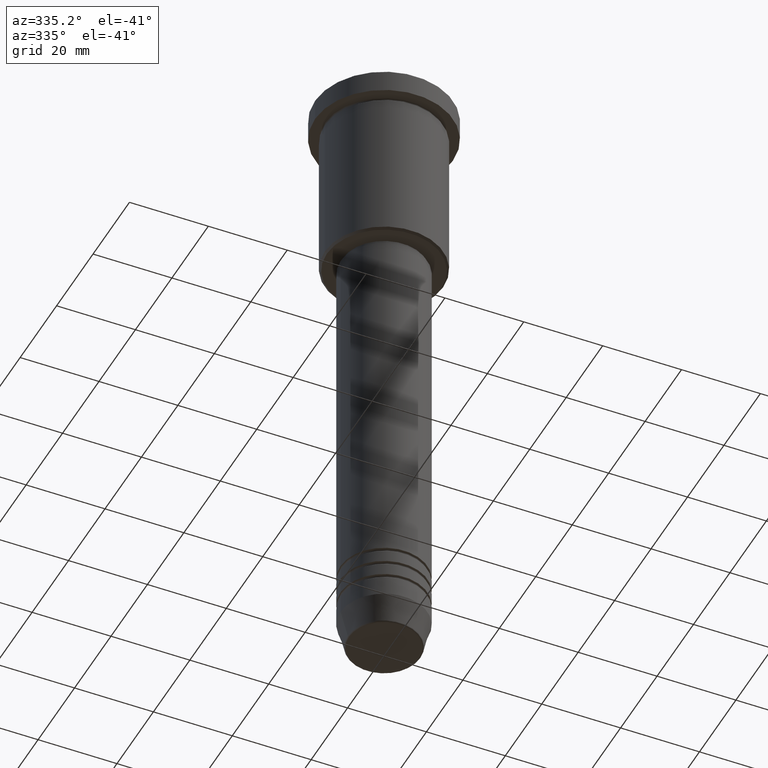
[diagram: clean part render]
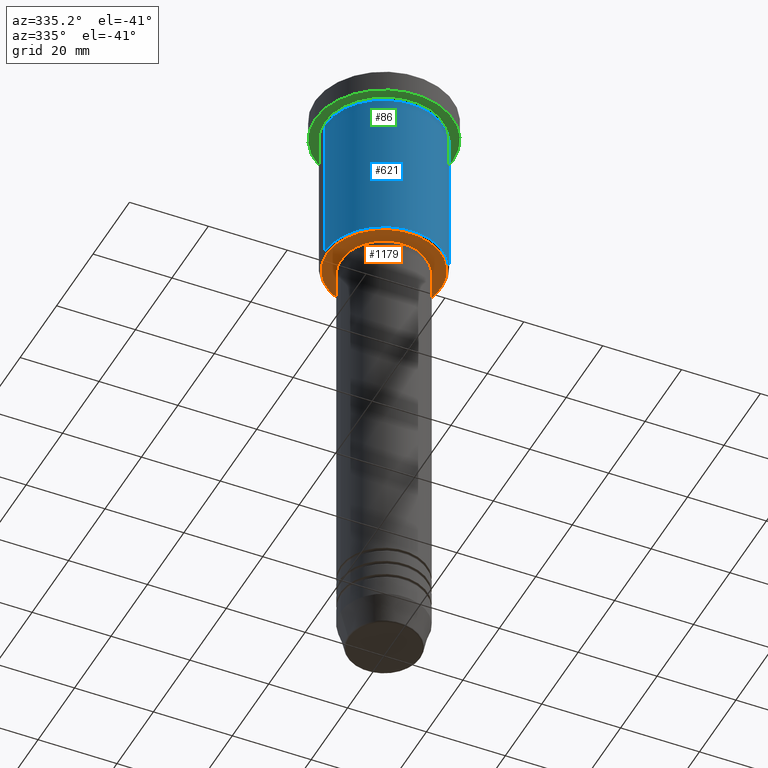
[diagram: same view with three faces highlighted in distinct colors, each labeled with its STEP entity id]
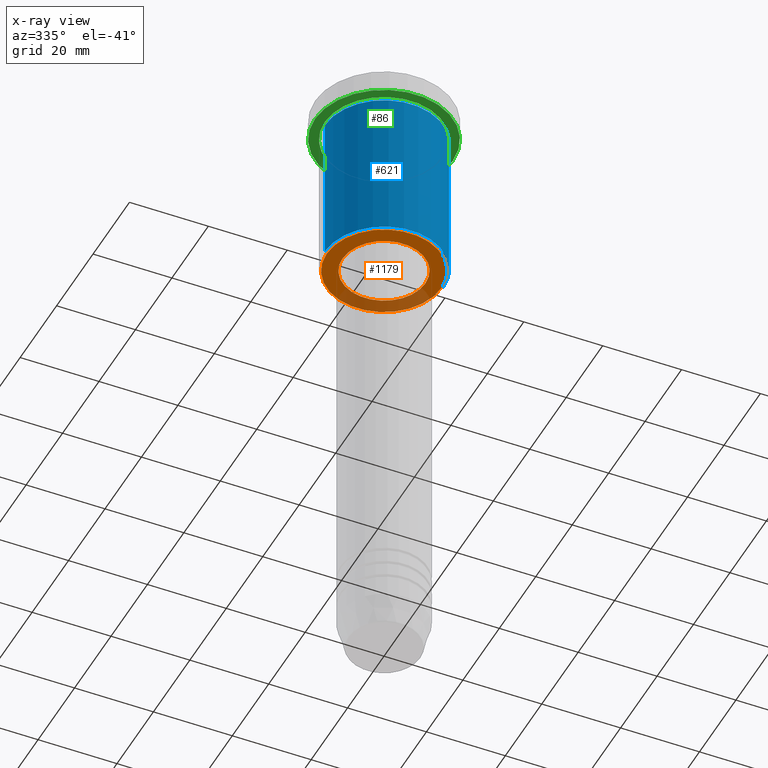
[diagram: x-ray of the same camera — body ghosted, the three highlighted faces saturated]
A machine part, auxiliary view with three faces highlighted in distinct colors.
The next image is the same camera in x-ray (body ghosted, the three faces saturated) — at least one of them is partly hidden behind the body in this view.
Their STEP definitions:

[orange] entity #1179 — the highlighted planar face has unit normal (0, 0, -1).
#3 = CARTESIAN_POINT ( 'NONE',  ( 0.000000000000000000, 0.000000000000000000, -46.00000000000000711 ) ) ;
#12 = CARTESIAN_POINT ( 'NONE',  ( 0.000000000000000000, 0.000000000000000000, -46.00000000000000711 ) ) ;
#28 = CARTESIAN_POINT ( 'NONE',  ( -10.49999999999999822, 1.285879139104720633E-15, -46.00000000000000711 ) ) ;
#33 = CIRCLE ( 'NONE', #842, 10.49999999999999822 ) ;
#64 = ORIENTED_EDGE ( 'NONE', *, *, #1136, .T. ) ;
#85 = VERTEX_POINT ( 'NONE', #28 ) ;
#110 = CIRCLE ( 'NONE', #560, 14.50000000000005329 ) ;
#136 = CARTESIAN_POINT ( 'NONE',  ( 0.000000000000000000, 0.000000000000000000, -46.00000000000001421 ) ) ;
#139 = ORIENTED_EDGE ( 'NONE', *, *, #231, .T. ) ;
#147 = CARTESIAN_POINT ( 'NONE',  ( 0.000000000000000000, 15.00000000000000000, -46.00000000000001421 ) ) ;
#161 = FACE_OUTER_BOUND ( 'NONE', #205, .T. ) ;
#195 = DIRECTION ( 'NONE',  ( 0.000000000000000000, 0.000000000000000000, -1.000000000000000000 ) ) ;
#205 = EDGE_LOOP ( 'NONE', ( #139, #64 ) ) ;
#231 = EDGE_CURVE ( 'NONE', #686, #650, #1063, .T. ) ;
#233 = CARTESIAN_POINT ( 'NONE',  ( -14.50000000000005329, 1.806354028742348957E-15, -46.00000000000001421 ) ) ;
#236 = DIRECTION ( 'NONE',  ( -1.000000000000000000, 0.000000000000000000, -0.000000000000000000 ) ) ;
#268 = ORIENTED_EDGE ( 'NONE', *, *, #664, .T. ) ;
#277 = CIRCLE ( 'NONE', #1131, 10.49999999999999822 ) ;
#312 = DIRECTION ( 'NONE',  ( -1.000000000000000000, 0.000000000000000000, 0.000000000000000000 ) ) ;
#329 = FACE_BOUND ( 'NONE', #1059, .T. ) ;
#376 = DIRECTION ( 'NONE',  ( 1.000000000000000000, 0.000000000000000000, 0.000000000000000000 ) ) ;
#549 = DIRECTION ( 'NONE',  ( -1.000000000000000000, 0.000000000000000000, 0.000000000000000000 ) ) ;
#560 = AXIS2_PLACEMENT_3D ( 'NONE', #136, #1125, #312 ) ;
#594 = AXIS2_PLACEMENT_3D ( 'NONE', #147, #1057, #236 ) ;
#619 = DIRECTION ( 'NONE',  ( -0.000000000000000000, -0.000000000000000000, 1.000000000000000000 ) ) ;
#638 = DIRECTION ( 'NONE',  ( -0.000000000000000000, -0.000000000000000000, 1.000000000000000000 ) ) ;
#645 = DIRECTION ( 'NONE',  ( 1.000000000000000000, 0.000000000000000000, 0.000000000000000000 ) ) ;
#650 = VERTEX_POINT ( 'NONE', #233 ) ;
#663 = VERTEX_POINT ( 'NONE', #741 ) ;
#664 = EDGE_CURVE ( 'NONE', #663, #85, #33, .T. ) ;
#679 = ORIENTED_EDGE ( 'NONE', *, *, #760, .T. ) ;
#686 = VERTEX_POINT ( 'NONE', #1088 ) ;
#687 = PLANE ( 'NONE',  #594 ) ;
#719 = CARTESIAN_POINT ( 'NONE',  ( 0.000000000000000000, 0.000000000000000000, -46.00000000000001421 ) ) ;
#741 = CARTESIAN_POINT ( 'NONE',  ( 10.49999999999999822, 0.000000000000000000, -46.00000000000000711 ) ) ;
#760 = EDGE_CURVE ( 'NONE', #85, #663, #277, .T. ) ;
#842 = AXIS2_PLACEMENT_3D ( 'NONE', #12, #619, #645 ) ;
#943 = AXIS2_PLACEMENT_3D ( 'NONE', #719, #195, #549 ) ;
#1057 = DIRECTION ( 'NONE',  ( 0.000000000000000000, 0.000000000000000000, -1.000000000000000000 ) ) ;
#1059 = EDGE_LOOP ( 'NONE', ( #268, #679 ) ) ;
#1063 = CIRCLE ( 'NONE', #943, 14.50000000000005329 ) ;
#1088 = CARTESIAN_POINT ( 'NONE',  ( 14.50000000000005329, 0.000000000000000000, -46.00000000000001421 ) ) ;
#1125 = DIRECTION ( 'NONE',  ( 0.000000000000000000, 0.000000000000000000, -1.000000000000000000 ) ) ;
#1131 = AXIS2_PLACEMENT_3D ( 'NONE', #3, #638, #376 ) ;
#1136 = EDGE_CURVE ( 'NONE', #650, #686, #110, .T. ) ;
#1179 = ADVANCED_FACE ( 'NONE', ( #161, #329 ), #687, .T. ) ;

[blue] entity #621 — the highlighted cylindrical surface (partial cylindrical patch) has radius 15 mm, axis along (-0, -0, 1).
#13 = AXIS2_PLACEMENT_3D ( 'NONE', #1032, #751, #214 ) ;
#24 = CARTESIAN_POINT ( 'NONE',  ( -15.00000000000000000, 1.836970198721029589E-15, -6.999999999999995559 ) ) ;
#77 = DIRECTION ( 'NONE',  ( 1.000000000000000000, 0.000000000000000000, 0.000000000000000000 ) ) ;
#117 = DIRECTION ( 'NONE',  ( 1.000000000000000000, 0.000000000000000000, 0.000000000000000000 ) ) ;
#180 = CARTESIAN_POINT ( 'NONE',  ( -15.00000000000000000, 1.836970198721029589E-15, 0.000000000000000000 ) ) ;
#203 = LINE ( 'NONE', #1128, #894 ) ;
#214 = DIRECTION ( 'NONE',  ( -1.000000000000000000, 0.000000000000000000, 0.000000000000000000 ) ) ;
#248 = VERTEX_POINT ( 'NONE', #903 ) ;
#303 = CARTESIAN_POINT ( 'NONE',  ( 0.000000000000000000, 0.000000000000000000, 0.000000000000000000 ) ) ;
#321 = VERTEX_POINT ( 'NONE', #24 ) ;
#331 = EDGE_CURVE ( 'NONE', #350, #404, #203, .T. ) ;
#350 = VERTEX_POINT ( 'NONE', #392 ) ;
#380 = AXIS2_PLACEMENT_3D ( 'NONE', #303, #461, #117 ) ;
#392 = CARTESIAN_POINT ( 'NONE',  ( 15.00000000000000000, 0.000000000000000000, -45.50000000000005684 ) ) ;
#404 = VERTEX_POINT ( 'NONE', #962 ) ;
#425 = ORIENTED_EDGE ( 'NONE', *, *, #901, .F. ) ;
#461 = DIRECTION ( 'NONE',  ( -0.000000000000000000, -0.000000000000000000, 1.000000000000000000 ) ) ;
#472 = ORIENTED_EDGE ( 'NONE', *, *, #331, .T. ) ;
#486 = AXIS2_PLACEMENT_3D ( 'NONE', #1175, #803, #77 ) ;
#603 = EDGE_CURVE ( 'NONE', #248, #350, #875, .T. ) ;
#613 = ORIENTED_EDGE ( 'NONE', *, *, #958, .F. ) ;
#621 = ADVANCED_FACE ( 'NONE', ( #1026 ), #936, .T. ) ;
#628 = LINE ( 'NONE', #180, #1065 ) ;
#681 = EDGE_LOOP ( 'NONE', ( #425, #1127, #472, #613 ) ) ;
#751 = DIRECTION ( 'NONE',  ( -0.000000000000000000, -0.000000000000000000, 1.000000000000000000 ) ) ;
#773 = DIRECTION ( 'NONE',  ( -0.000000000000000000, -0.000000000000000000, 1.000000000000000000 ) ) ;
#803 = DIRECTION ( 'NONE',  ( -0.000000000000000000, -0.000000000000000000, 1.000000000000000000 ) ) ;
#822 = DIRECTION ( 'NONE',  ( -0.000000000000000000, -0.000000000000000000, 1.000000000000000000 ) ) ;
#843 = CIRCLE ( 'NONE', #486, 15.00000000000000000 ) ;
#875 = CIRCLE ( 'NONE', #13, 15.00000000000000000 ) ;
#894 = VECTOR ( 'NONE', #773, 1000.000000000000000 ) ;
#901 = EDGE_CURVE ( 'NONE', #248, #321, #628, .T. ) ;
#903 = CARTESIAN_POINT ( 'NONE',  ( -15.00000000000000000, 1.836970198721029589E-15, -45.50000000000005684 ) ) ;
#936 = CYLINDRICAL_SURFACE ( 'NONE', #380, 15.00000000000000000 ) ;
#958 = EDGE_CURVE ( 'NONE', #321, #404, #843, .T. ) ;
#962 = CARTESIAN_POINT ( 'NONE',  ( 15.00000000000000000, 0.000000000000000000, -6.999999999999995559 ) ) ;
#1026 = FACE_OUTER_BOUND ( 'NONE', #681, .T. ) ;
#1032 = CARTESIAN_POINT ( 'NONE',  ( 0.000000000000000000, 0.000000000000000000, -45.50000000000005684 ) ) ;
#1065 = VECTOR ( 'NONE', #822, 1000.000000000000000 ) ;
#1127 = ORIENTED_EDGE ( 'NONE', *, *, #603, .T. ) ;
#1128 = CARTESIAN_POINT ( 'NONE',  ( 15.00000000000000000, 0.000000000000000000, 0.000000000000000000 ) ) ;
#1175 = CARTESIAN_POINT ( 'NONE',  ( 0.000000000000000000, 0.000000000000000000, -6.999999999999995559 ) ) ;

[green] entity #86 — the highlighted planar face has unit normal (0, 0, -1).
#45 = ORIENTED_EDGE ( 'NONE', *, *, #352, .T. ) ;
#47 = ORIENTED_EDGE ( 'NONE', *, *, #1096, .F. ) ;
#49 = AXIS2_PLACEMENT_3D ( 'NONE', #581, #291, #951 ) ;
#86 = ADVANCED_FACE ( 'NONE', ( #394, #212 ), #308, .T. ) ;
#119 = CARTESIAN_POINT ( 'NONE',  ( 0.000000000000000000, 0.000000000000000000, -5.999999999999995559 ) ) ;
#183 = CIRCLE ( 'NONE', #49, 17.50000000000000000 ) ;
#194 = ORIENTED_EDGE ( 'NONE', *, *, #786, .T. ) ;
#212 = FACE_OUTER_BOUND ( 'NONE', #1017, .T. ) ;
#291 = DIRECTION ( 'NONE',  ( -0.000000000000000000, -0.000000000000000000, 1.000000000000000000 ) ) ;
#308 = PLANE ( 'NONE',  #318 ) ;
#318 = AXIS2_PLACEMENT_3D ( 'NONE', #474, #744, #665 ) ;
#352 = EDGE_CURVE ( 'NONE', #770, #1176, #714, .T. ) ;
#361 = AXIS2_PLACEMENT_3D ( 'NONE', #676, #762, #938 ) ;
#385 = CARTESIAN_POINT ( 'NONE',  ( -17.50000000000000000, 2.143131898507868248E-15, -5.999999999999995559 ) ) ;
#394 = FACE_BOUND ( 'NONE', #978, .T. ) ;
#451 = CIRCLE ( 'NONE', #361, 15.00000000000000000 ) ;
#468 = AXIS2_PLACEMENT_3D ( 'NONE', #119, #1115, #767 ) ;
#474 = CARTESIAN_POINT ( 'NONE',  ( 0.000000000000000000, 17.50000000000000000, -5.999999999999995559 ) ) ;
#515 = CARTESIAN_POINT ( 'NONE',  ( -15.00000000000000000, 0.000000000000000000, -5.999999999999994671 ) ) ;
#524 = CIRCLE ( 'NONE', #983, 17.50000000000000000 ) ;
#581 = CARTESIAN_POINT ( 'NONE',  ( 0.000000000000000000, 0.000000000000000000, -5.999999999999995559 ) ) ;
#665 = DIRECTION ( 'NONE',  ( -1.000000000000000000, 0.000000000000000000, -0.000000000000000000 ) ) ;
#676 = CARTESIAN_POINT ( 'NONE',  ( 0.000000000000000000, 0.000000000000000000, -5.999999999999995559 ) ) ;
#714 = CIRCLE ( 'NONE', #468, 15.00000000000000000 ) ;
#733 = CARTESIAN_POINT ( 'NONE',  ( 0.000000000000000000, 0.000000000000000000, -5.999999999999995559 ) ) ;
#744 = DIRECTION ( 'NONE',  ( 0.000000000000000000, 0.000000000000000000, -1.000000000000000000 ) ) ;
#762 = DIRECTION ( 'NONE',  ( -0.000000000000000000, -0.000000000000000000, 1.000000000000000000 ) ) ;
#763 = VERTEX_POINT ( 'NONE', #1009 ) ;
#767 = DIRECTION ( 'NONE',  ( -1.000000000000000000, 0.000000000000000000, 0.000000000000000000 ) ) ;
#770 = VERTEX_POINT ( 'NONE', #925 ) ;
#786 = EDGE_CURVE ( 'NONE', #1176, #770, #451, .T. ) ;
#831 = DIRECTION ( 'NONE',  ( 1.000000000000000000, 0.000000000000000000, 0.000000000000000000 ) ) ;
#848 = EDGE_CURVE ( 'NONE', #763, #1119, #183, .T. ) ;
#865 = ORIENTED_EDGE ( 'NONE', *, *, #848, .F. ) ;
#920 = DIRECTION ( 'NONE',  ( -0.000000000000000000, -0.000000000000000000, 1.000000000000000000 ) ) ;
#925 = CARTESIAN_POINT ( 'NONE',  ( 15.00000000000000000, 1.836970198721029589E-15, -5.999999999999994671 ) ) ;
#938 = DIRECTION ( 'NONE',  ( -1.000000000000000000, 0.000000000000000000, 0.000000000000000000 ) ) ;
#951 = DIRECTION ( 'NONE',  ( 1.000000000000000000, 0.000000000000000000, 0.000000000000000000 ) ) ;
#978 = EDGE_LOOP ( 'NONE', ( #194, #45 ) ) ;
#983 = AXIS2_PLACEMENT_3D ( 'NONE', #733, #920, #831 ) ;
#1009 = CARTESIAN_POINT ( 'NONE',  ( 17.50000000000000000, 0.000000000000000000, -5.999999999999995559 ) ) ;
#1017 = EDGE_LOOP ( 'NONE', ( #865, #47 ) ) ;
#1096 = EDGE_CURVE ( 'NONE', #1119, #763, #524, .T. ) ;
#1115 = DIRECTION ( 'NONE',  ( -0.000000000000000000, -0.000000000000000000, 1.000000000000000000 ) ) ;
#1119 = VERTEX_POINT ( 'NONE', #385 ) ;
#1176 = VERTEX_POINT ( 'NONE', #515 ) ;